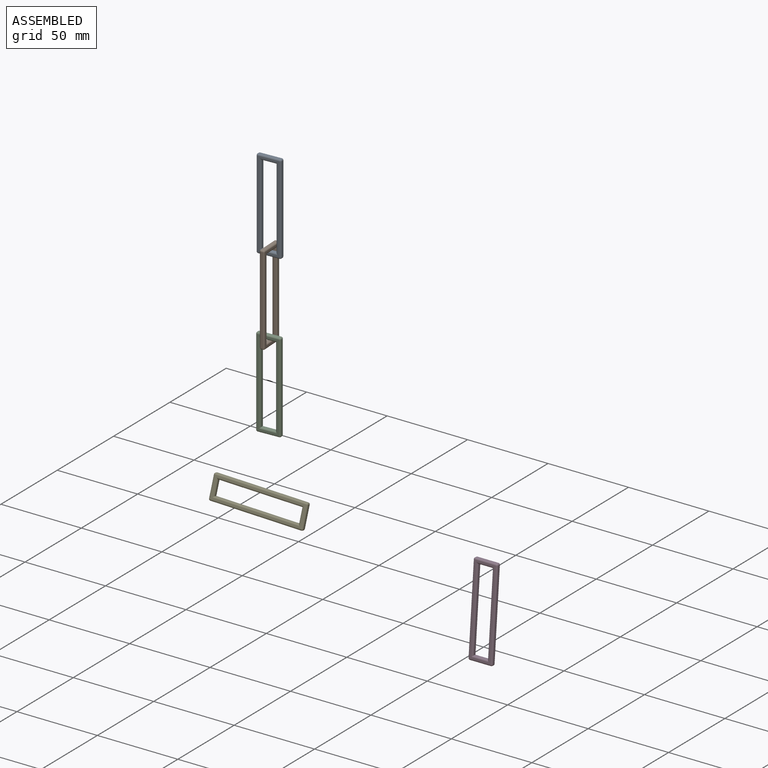
[diagram: assembled view]
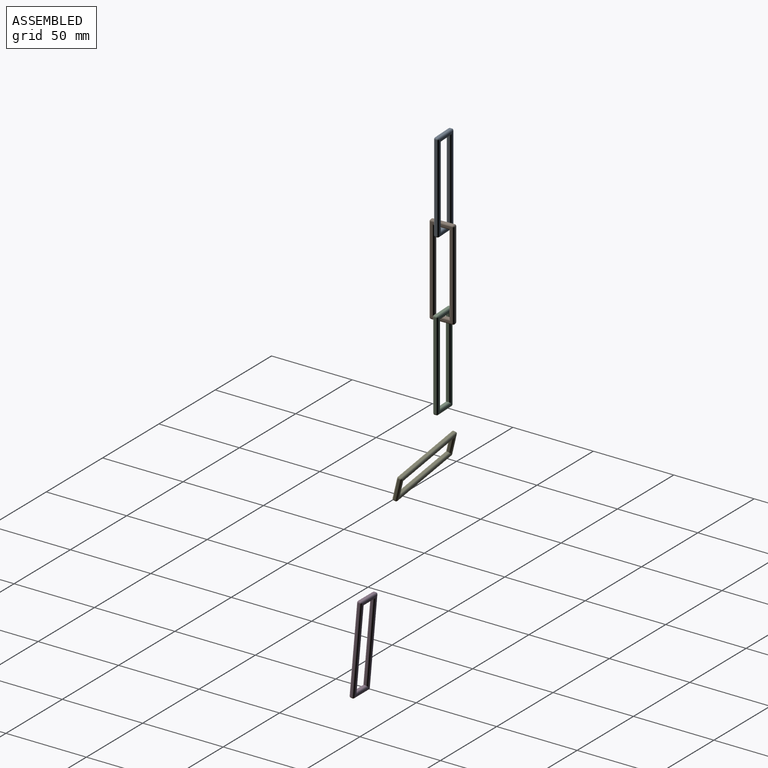
[diagram: assembled view, second angle]
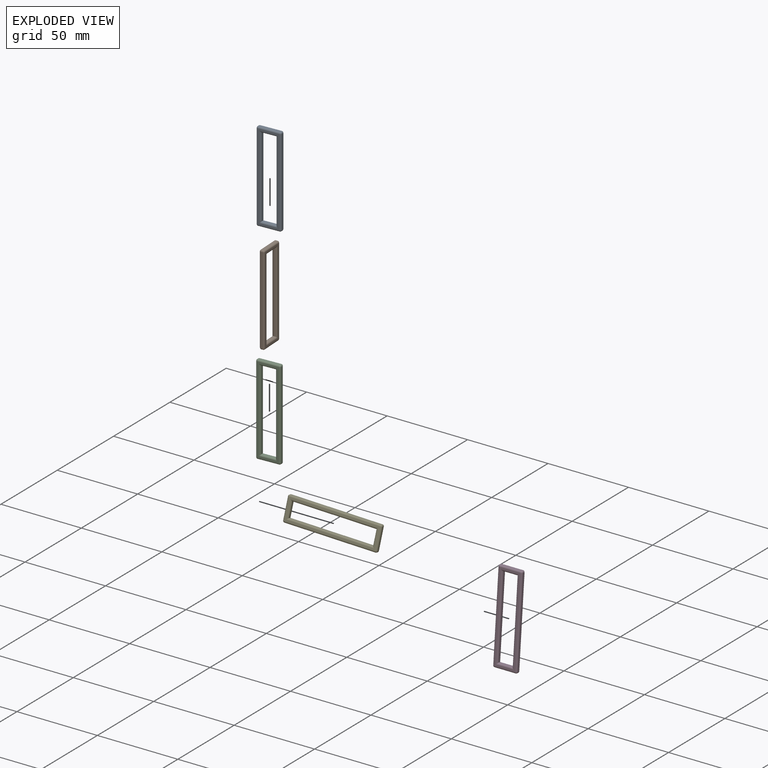
[diagram: exploded view]
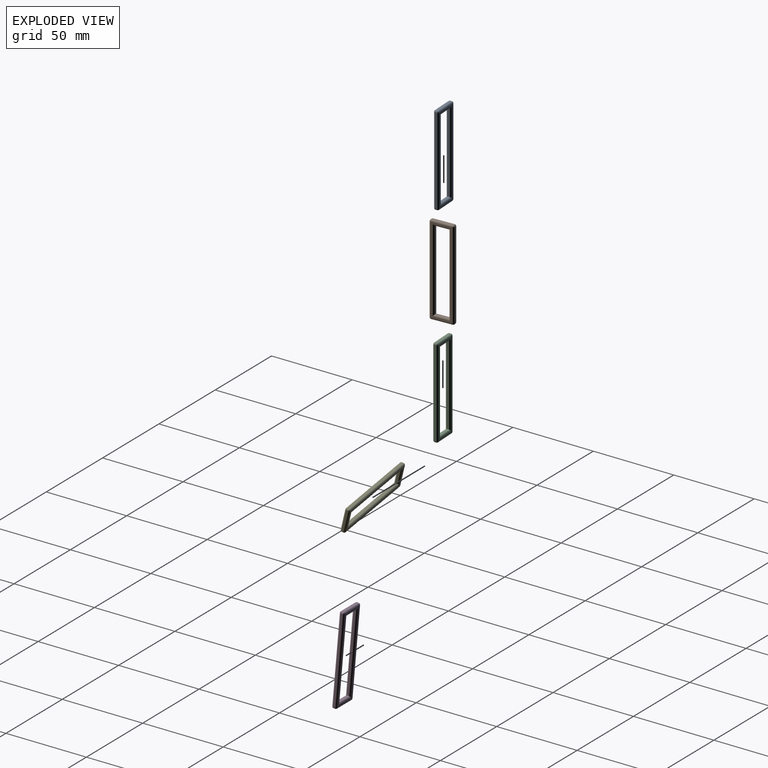
[diagram: exploded view, second angle]
ASSEMBLY  parts=5 mates=3
PART A: 38 faces, bbox 15x3x56 mm
  f0: plane 13x1mm, normal (0,0,1), area 13mm2, adj f18,f23,f26,f29
  f1: plane 54x1mm, normal (-1,0,0), area 54mm2, adj f15,f24,f25,f29
  f2: plane 13x1mm, normal (0,0,-1), area 13mm2, adj f10,f14,f15,f16
  f3: plane 50x1mm, normal (1,0,0), area 50mm2, adj f4,f6,f31,f35
  f4: plane 9x1mm, normal (0,0,-1), area 9mm2, adj f3,f5,f30,f34
  f5: plane 50x1mm, normal (-1,0,0), area 50mm2, adj f4,f6,f32,f36
  f6: plane 9x1mm, normal (0,0,1), area 9mm2, adj f3,f5,f33,f37
  f7: plane 54x1mm, normal (1,0,0), area 54mm2, adj f10,f13,f17,f18
  f8: plane 54x13mm, normal (0,-1,0), area 130mm2, adj f13,f14,f23,f24,f34,f35,f36,f37
  f9: plane 54x13mm, normal (0,1,0), area 130mm2, adj f16,f17,f25,f26,f30,f31,f32,f33
  f10: cylinder r=1mm len=1mm, axis (0,-1,0), area 1.6mm2, adj f2,f7,f11,f12
  f11: sphere r=1mm, area 1.6mm2, adj f10,f13,f14
  f12: sphere r=1mm, area 1.6mm2, adj f10,f16,f17
  f13: cylinder r=1mm len=54mm, axis (0,0,-1), area 84.8mm2, adj f7,f8,f11,f19
  f14: cylinder r=1mm len=13mm, axis (-1,0,0), area 20.4mm2, adj f2,f8,f11,f20
  f15: cylinder r=1mm len=1mm, axis (0,1,0), area 1.6mm2, adj f1,f2,f20,f21
  f16: cylinder r=1mm len=13mm, axis (1,0,0), area 20.4mm2, adj f2,f9,f12,f21
  f17: cylinder r=1mm len=54mm, axis (0,0,1), area 84.8mm2, adj f7,f9,f12,f22
  f18: cylinder r=1mm len=1mm, axis (0,1,0), area 1.6mm2, adj f0,f7,f19,f22
  f19: sphere r=1mm, area 1.6mm2, adj f13,f18,f23
  f20: sphere r=1mm, area 1.6mm2, adj f14,f15,f24
  f21: sphere r=1mm, area 1.6mm2, adj f15,f16,f25
  f22: sphere r=1mm, area 1.6mm2, adj f17,f18,f26
  f23: cylinder r=1mm len=13mm, axis (1,0,0), area 20.4mm2, adj f0,f8,f19,f27
  f24: cylinder r=1mm len=54mm, axis (0,0,1), area 84.8mm2, adj f1,f8,f20,f27
  f25: cylinder r=1mm len=54mm, axis (0,0,-1), area 84.8mm2, adj f1,f9,f21,f28
  f26: cylinder r=1mm len=13mm, axis (-1,0,0), area 20.4mm2, adj f0,f9,f22,f28
  f27: sphere r=1mm, area 1.6mm2, adj f23,f24,f29
  f28: sphere r=1mm, area 1.6mm2, adj f25,f26,f29
  f29: cylinder r=1mm len=1mm, axis (0,-1,0), area 1.6mm2, adj f0,f1,f27,f28
  f30: cylinder r=1mm len=11mm, axis (1,0,0), area 15.3mm2, adj f4,f9,f31,f32
  f31: cylinder r=1mm len=52mm, axis (0,0,1), area 79.7mm2, adj f3,f9,f30,f33
  f32: cylinder r=1mm len=52mm, axis (0,0,-1), area 79.7mm2, adj f5,f9,f30,f33
  f33: cylinder r=1mm len=11mm, axis (-1,0,0), area 15.3mm2, adj f6,f9,f31,f32
  f34: cylinder r=1mm len=11mm, axis (-1,0,0), area 15.3mm2, adj f4,f8,f35,f36
  f35: cylinder r=1mm len=52mm, axis (0,0,-1), area 79.7mm2, adj f3,f8,f34,f37
  f36: cylinder r=1mm len=52mm, axis (0,0,1), area 79.7mm2, adj f5,f8,f34,f37
  f37: cylinder r=1mm len=11mm, axis (1,0,0), area 15.3mm2, adj f6,f8,f35,f36
PART B: same geometry as A
PART C: same geometry as A
PART D: same geometry as A
PART E: same geometry as A
PLACE A rot(axis=(0,0,1),2.8deg) t=(2.83,0.63,84.8)mm
PLACE B rot(axis=(0,0,1),92.8deg) t=(1.43,-1.44,34.8)mm
PLACE C rot(axis=(0,0,1),2.8deg) t=(2.86,0.13,-15.2)mm
PLACE D rot(axis=(-1,0,0),5deg) t=(115.67,29.71,-124.2)mm
PLACE E rot(axis=(0.72,0.12,0.68),172.9deg) t=(4.17,-13.36,-76.51)mm
MATE planar C.f4 <-> B.f6  axis (0,0,-1) through (2.93,-1.37,9.8)mm
MATE planar A.f6 <-> B.f4  axis (0,0,1) through (2.93,-1.37,59.8)mm
MATE parallel B.f8 <-> C.f7  axis (1,0.05,0) through (4.43,-1.3,34.8)mm
